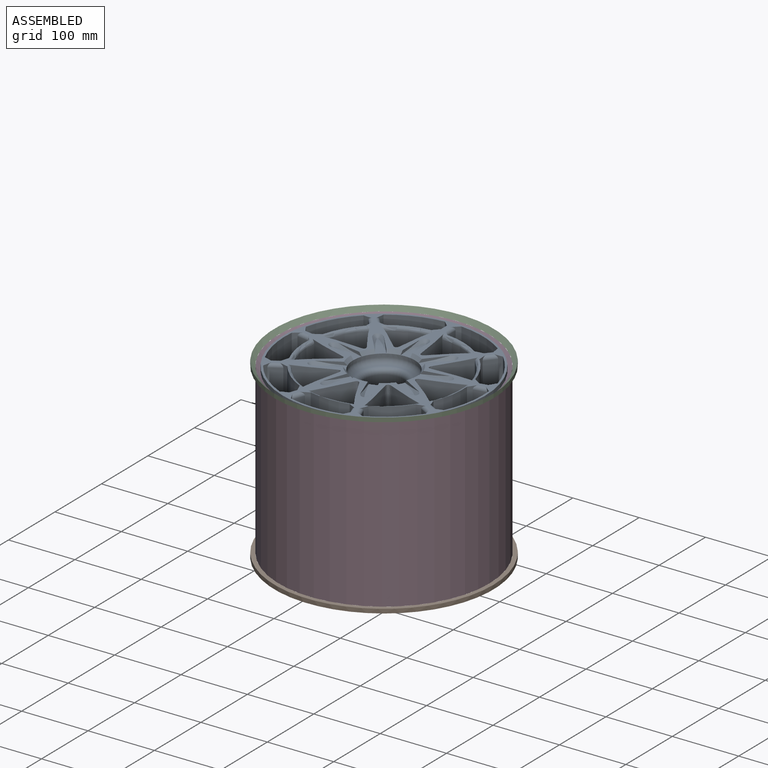
[diagram: assembled view]
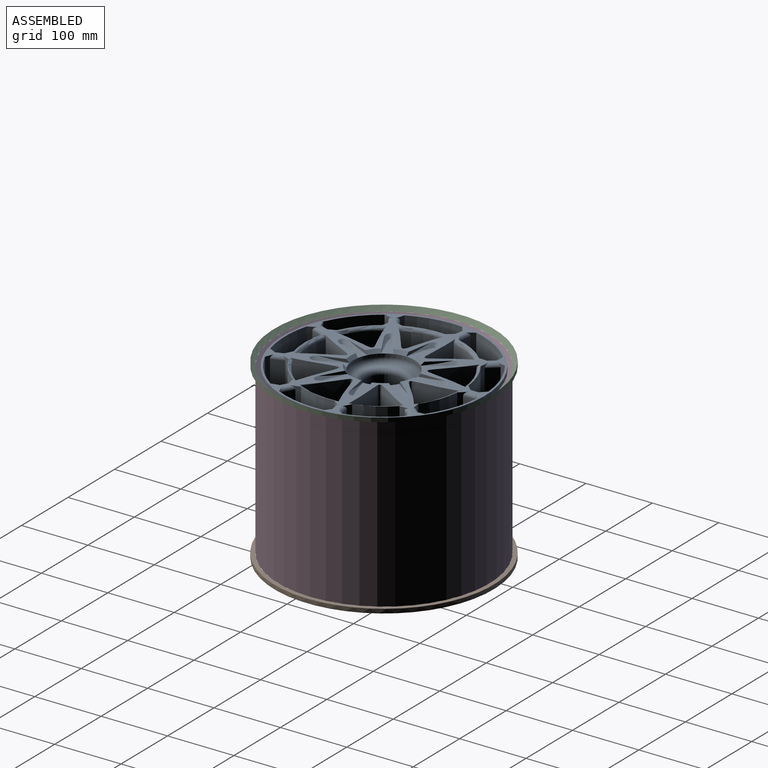
[diagram: assembled view, second angle]
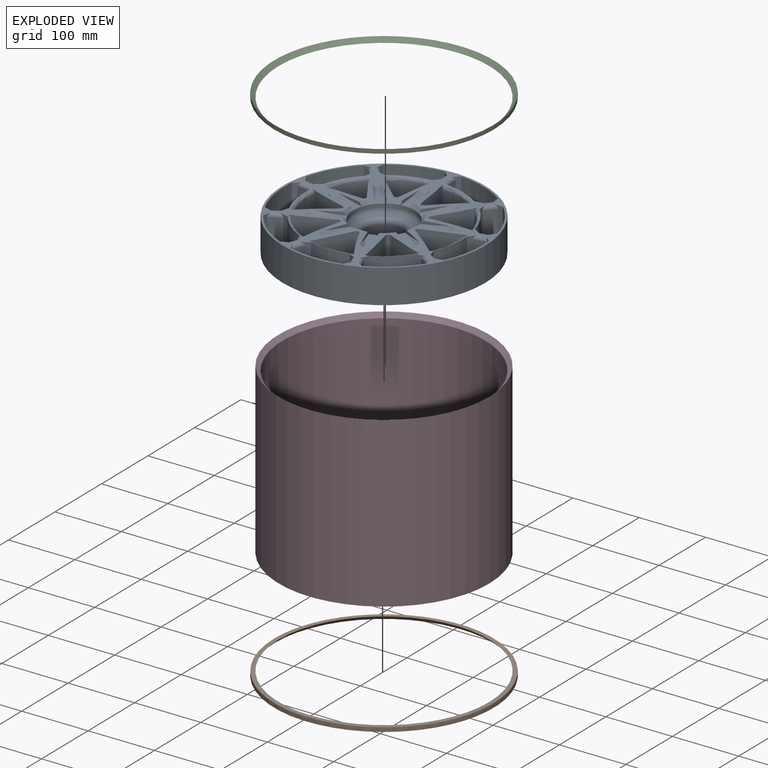
[diagram: exploded view]
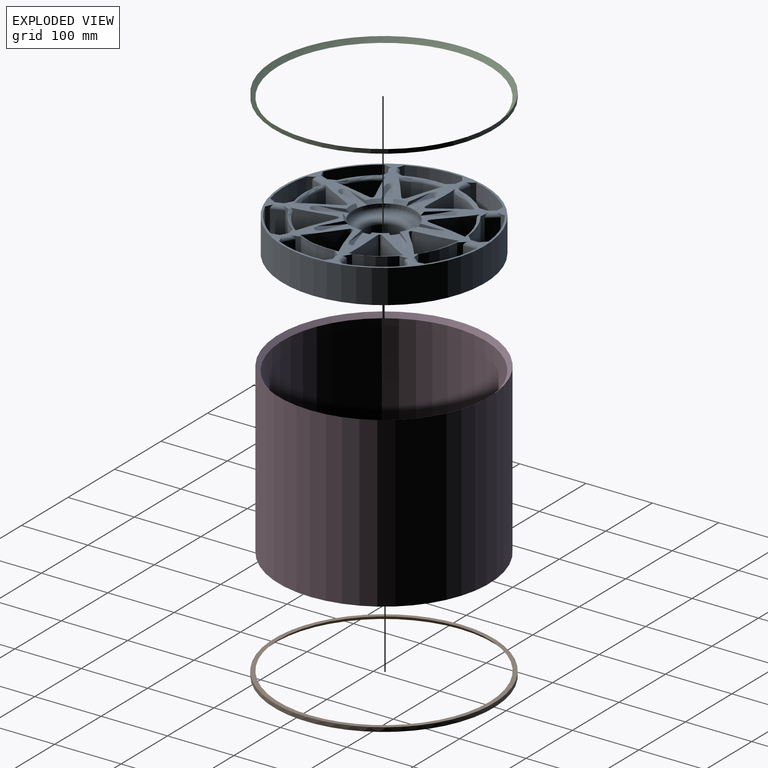
[diagram: exploded view, second angle]
ASSEMBLY  parts=4 mates=3
PART A: 270 faces, bbox 318.7x318.7x66.6 mm
  f0: plane 68.53x32.26mm, normal (0,0,-1), area 1089.1mm2, adj f217,f236,f247,f248,f249,f250
  f1: plane 66.87x49.59mm, normal (0,0,-1), area 1089.1mm2, adj f213,f238,f250,f251,f252,f253
  f2: plane 68.74x40.54mm, normal (0,0,-1), area 1089.1mm2, adj f209,f240,f253,f254,f255,f256
  f3: plane 68.74x40.53mm, normal (0,0,-1), area 1089.1mm2, adj f205,f242,f256,f257,f268,f269
  f4: plane 62.97x57.15mm, normal (0,0,-1), area 1089.1mm2, adj f212,f237,f259,f260,f265,f266
  f5: plane 66.87x49.6mm, normal (0,0,-1), area 1089.1mm2, adj f204,f241,f262,f263,f267,f269
  f6: plane 62.97x57.15mm, normal (0,0,-1), area 1089.1mm2, adj f220,f234,f243,f245,f246,f247
  f7: plane 68.53x32.26mm, normal (0,0,-1), area 1089.1mm2, adj f208,f239,f258,f259,f261,f262
  f8: cylinder r=28.57mm len=57.15mm, axis (0,0,-1), area 4560.4mm2, adj f17,f232
  f9: plane 74x35.9mm, normal (0,0,1), area 423.8mm2, adj f84,f101,f104,f230
  f10: plane 67.81x63.31mm, normal (0,0,1), area 423.8mm2, adj f85,f86,f105,f230
  f11: plane 73.41x28.33mm, normal (0,0,1), area 423.8mm2, adj f87,f88,f103,f230
  f12: plane 67.81x63.31mm, normal (0,0,1), area 423.8mm2, adj f89,f90,f106,f230
  f13: plane 74x35.9mm, normal (0,0,1), area 423.8mm2, adj f91,f92,f107,f230
  f14: plane 71.15x57.78mm, normal (0,0,1), area 423.8mm2, adj f93,f94,f109,f230
  f15: plane 73.24x50.01mm, normal (0,0,1), area 423.8mm2, adj f95,f96,f108,f230
  f16: plane 73.24x50.01mm, normal (0,0,1), area 423.8mm2, adj f97,f98,f110,f230
  f17: plane 73.44x72.32mm, normal (0,0,-1), area 1455.9mm2, adj f8,f234,f235,f236,f237,f238,f239,f240
  f18: plane 305.51x305.51mm, normal (0,0,1), area 16416.9mm2, adj f42,f47,f49,f51,f53,f55,f57,f59
  f19: plane 40.64x15.22mm, normal (-0.77,-0.64,0), area 807.2mm2, adj f135,f150,f183,f201
  f20: cylinder r=119.26mm len=50.82mm, axis (0,0,-1), area 2556.9mm2, adj f129,f149,f150,f219
  f21: plane 40.64x19.56mm, normal (0.17,0.98,0), area 807.2mm2, adj f142,f149,f184,f202
  f22: plane 40.64x19.56mm, normal (-0.17,-0.98,0), area 807.2mm2, adj f134,f160,f173,f191
  f23: cylinder r=119.26mm len=57.79mm, axis (0,0,-1), area 2556.9mm2, adj f128,f160,f161,f215
  f24: plane 40.64x17.2mm, normal (-0.5,0.87,0), area 807.2mm2, adj f143,f161,f172,f190
  f25: plane 40.64x17.2mm, normal (0.5,-0.87,0), area 807.2mm2, adj f133,f162,f171,f189
  f26: cylinder r=119.26mm len=44.95mm, axis (0,0,-1), area 2556.9mm2, adj f127,f162,f163,f211
  f27: plane 40.64x18.67mm, normal (-0.94,0.34,0), area 807.2mm2, adj f144,f163,f170,f188
  f28: plane 40.64x18.67mm, normal (0.94,-0.34,0), area 807.2mm2, adj f132,f164,f169,f187
  f29: cylinder r=119.26mm len=58.68mm, axis (0,0,-1), area 2556.9mm2, adj f126,f164,f166,f207
  f30: plane 40.64x18.67mm, normal (-0.94,-0.34,0), area 807.2mm2, adj f145,f166,f167,f185
  f31: plane 40.64x18.67mm, normal (0.94,0.34,0), area 807.2mm2, adj f131,f165,f168,f186
  f32: cylinder r=119.26mm len=44.95mm, axis (0,0,-1), area 2556.9mm2, adj f125,f158,f165,f203
  f33: plane 40.64x17.2mm, normal (-0.5,-0.87,0), area 807.2mm2, adj f146,f158,f175,f193
  f34: plane 40.64x17.2mm, normal (0.5,0.87,0), area 807.2mm2, adj f138,f159,f174,f192
  f35: cylinder r=119.26mm len=57.79mm, axis (0,0,-1), area 2556.9mm2, adj f124,f157,f159,f206
  f36: plane 40.64x19.56mm, normal (0.17,-0.98,0), area 807.2mm2, adj f147,f157,f176,f194
  f37: plane 40.64x19.56mm, normal (-0.17,0.98,0), area 807.2mm2, adj f139,f156,f177,f195
  f38: cylinder r=119.26mm len=50.82mm, axis (0,0,-1), area 2556.9mm2, adj f122,f154,f156,f210
  f39: plane 40.64x15.22mm, normal (0.77,-0.64,0), area 807.2mm2, adj f148,f154,f179,f197
  f40: cylinder r=119.26mm len=55.14mm, axis (0,0,-1), area 2556.9mm2, adj f123,f153,f155,f214
  f41: plane 40.64x19.86mm, normal (1,0,0), area 807.2mm2, adj f140,f153,f180,f198
  f42: cylinder r=149.22mm len=73.76mm, axis (0,0,-1), area 4035.1mm2, adj f18,f83,f137,f140
  f43: plane 40.64x19.86mm, normal (-1,0,0), area 807.2mm2, adj f136,f152,f181,f199
  f44: cylinder r=119.26mm len=55.14mm, axis (0,0,-1), area 2556.9mm2, adj f130,f151,f152,f218
  f45: plane 40.64x15.22mm, normal (0.77,0.64,0), area 807.2mm2, adj f141,f151,f182,f200
  f46: cylinder r=114.23mm len=54.71mm, axis (0,0,-1), area 2113.5mm2, adj f47,f73,f122,f210
  f47: extruded ~61.86x38.1mm, area 1895.6mm2, adj f18,f46,f122,f208,f221,f258
  f48: cylinder r=114.23mm len=59.36mm, axis (0,0,-1), area 2113.5mm2, adj f49,f74,f123,f214
  f49: extruded ~46.64x40.65mm, area 1895.6mm2, adj f18,f48,f123,f212,f228,f266
  f50: cylinder r=114.23mm len=62.21mm, axis (0,0,-1), area 2113.5mm2, adj f51,f75,f124,f206
  f51: extruded ~48.13x38.87mm, area 1895.6mm2, adj f18,f50,f124,f204,f222,f263
  f52: cylinder r=114.23mm len=48.39mm, axis (0,0,-1), area 2113.5mm2, adj f53,f76,f125,f203
  f53: extruded ~60.71x38.1mm, area 1895.6mm2, adj f18,f52,f125,f205,f223,f268
  f54: cylinder r=114.23mm len=63.17mm, axis (0,0,-1), area 2113.5mm2, adj f55,f77,f126,f207
  f55: extruded ~54.15x38.1mm, area 1895.6mm2, adj f18,f54,f126,f209,f224,f255
  f56: cylinder r=114.23mm len=48.39mm, axis (0,0,-1), area 2113.5mm2, adj f57,f78,f127,f211
  f57: extruded ~57.73x38.1mm, area 1895.6mm2, adj f18,f56,f127,f213,f225,f252
  f58: cylinder r=114.23mm len=62.21mm, axis (0,0,-1), area 2113.5mm2, adj f59,f79,f128,f215
  f59: extruded ~58.52x38.1mm, area 1895.6mm2, adj f18,f58,f128,f217,f226,f249
  f60: cylinder r=114.23mm len=54.71mm, axis (0,0,-1), area 2113.5mm2, adj f61,f80,f129,f219
  f61: extruded ~52.99x38.1mm, area 1895.6mm2, adj f18,f60,f129,f220,f227,f246
  f62: cylinder r=114.23mm len=59.36mm, axis (0,0,-1), area 2113.5mm2, adj f63,f81,f130,f218
  f63: extruded ~61.12x38.1mm, area 1895.6mm2, adj f18,f62,f130,f216,f229,f244
  f64: cylinder r=149.22mm len=77.3mm, axis (0,0,-1), area 4035.1mm2, adj f18,f83,f134,f143
  f65: cylinder r=149.22mm len=60.13mm, axis (0,0,-1), area 4035.1mm2, adj f18,f83,f133,f144
  f66: cylinder r=149.22mm len=78.5mm, axis (0,0,-1), area 4035.1mm2, adj f18,f83,f132,f145
  f67: cylinder r=149.22mm len=60.13mm, axis (0,0,-1), area 4035.1mm2, adj f18,f83,f131,f146
  f68: cylinder r=149.22mm len=77.3mm, axis (0,0,-1), area 4035.1mm2, adj f18,f83,f138,f147
  f69: cylinder r=149.22mm len=67.98mm, axis (0,0,-1), area 4035.1mm2, adj f18,f83,f139,f148
  f70: plane 40.64x15.22mm, normal (-0.77,0.64,0), area 807.2mm2, adj f137,f155,f178,f196
  f71: cylinder r=152.4mm len=304.8mm, axis (0,0,-1), area 48643.9mm2, adj f18,f83
  f72: cylinder r=149.22mm len=73.76mm, axis (0,0,-1), area 4035.1mm2, adj f18,f83,f136,f141
  f73: extruded ~52.99x38.1mm, area 1895.8mm2, adj f18,f46,f122,f212,f221,f260
  f74: extruded ~61.12x38.1mm, area 1895.8mm2, adj f18,f48,f123,f216,f228,f264
  f75: extruded ~58.52x38.1mm, area 1895.8mm2, adj f18,f50,f124,f208,f222,f261
  f76: extruded ~57.73x38.1mm, area 1895.8mm2, adj f18,f52,f125,f204,f223,f267
  f77: extruded ~54.15x38.1mm, area 1895.8mm2, adj f18,f54,f126,f205,f224,f257
  f78: extruded ~60.71x38.1mm, area 1895.8mm2, adj f18,f56,f127,f209,f225,f254
  f79: extruded ~48.13x38.87mm, area 1895.8mm2, adj f18,f58,f128,f213,f226,f251
  f80: extruded ~61.86x38.1mm, area 1895.8mm2, adj f18,f60,f129,f217,f227,f248
  f81: extruded ~46.64x40.65mm, area 1895.8mm2, adj f18,f62,f130,f220,f229,f243
  f82: cylinder r=149.22mm len=67.98mm, axis (0,0,-1), area 4035.1mm2, adj f18,f83,f135,f142
  f83: plane 304.8x304.8mm, normal (0,0,-1), area 4847.6mm2, adj f42,f64,f65,f66,f67,f68,f69,f71
  f84: plane 43.98x10.91mm, normal (0.17,-0.98,0), area 114.2mm2, adj f9,f18,f104,f121
  f85: plane 35.06x30.03mm, normal (-0.77,0.64,0), area 114.2mm2, adj f10,f18,f105,f121
  f86: plane 35.06x30.03mm, normal (0.77,-0.64,0), area 114.2mm2, adj f10,f18,f105,f113
  f87: plane 44.59x8.91mm, normal (-1,0,0), area 113.9mm2, adj f11,f18,f103,f113
  f88: plane 44.6x8.91mm, normal (1,0,0), area 113.9mm2, adj f11,f18,f103,f114
  f89: plane 35.06x30.03mm, normal (-0.77,-0.64,0), area 114.2mm2, adj f12,f18,f106,f114
  f90: plane 35.06x30.03mm, normal (0.77,0.64,0), area 114.2mm2, adj f12,f18,f106,f115
  f91: plane 43.97x10.91mm, normal (-0.17,-0.98,0), area 114.2mm2, adj f13,f18,f107,f115
  f92: plane 43.98x10.91mm, normal (0.17,0.98,0), area 114.2mm2, adj f13,f18,f107,f116
  f93: plane 39.13x24.21mm, normal (0.5,-0.87,0), area 114.2mm2, adj f14,f18,f109,f116
  f94: plane 39.13x24.21mm, normal (-0.5,0.87,0), area 114.2mm2, adj f14,f18,f109,f117
  f95: plane 42.14x17.77mm, normal (0.94,-0.34,0), area 114.2mm2, adj f15,f18,f108,f117
  f96: plane 42.14x17.77mm, normal (-0.94,0.34,0), area 114.2mm2, adj f15,f18,f108,f118
  f97: plane 42.14x17.77mm, normal (0.94,0.34,0), area 114.2mm2, adj f16,f18,f110,f118
  f98: plane 42.14x17.77mm, normal (-0.94,-0.34,0), area 114.2mm2, adj f16,f18,f110,f119
  f99: plane 39.13x24.21mm, normal (0.5,0.87,0), area 114.2mm2, adj f18,f102,f111,f119
  f100: plane 39.13x24.21mm, normal (-0.5,-0.87,0), area 114.2mm2, adj f18,f102,f111,f120
  f101: plane 43.97x10.91mm, normal (-0.17,0.98,0), area 114.2mm2, adj f9,f18,f104,f120
  f102: plane 71.15x57.78mm, normal (0,0,1), area 423.8mm2, adj f99,f100,f111,f230
  f103: bspline ~52.18x25.42mm, area 395.1mm2, adj f11,f18,f87,f88
  f104: bspline ~53.35x27.42mm, area 395.1mm2, adj f9,f18,f84,f101
  f105: bspline ~49.22x45.17mm, area 395.1mm2, adj f10,f18,f85,f86
  f106: bspline ~44.93x41.49mm, area 395.1mm2, adj f12,f18,f89,f90
  f107: bspline ~53.32x27.43mm, area 395.1mm2, adj f13,f18,f91,f92
  f108: bspline ~53.38x33.81mm, area 395.1mm2, adj f15,f18,f95,f96
  f109: bspline ~47.32x36.96mm, area 395.1mm2, adj f14,f18,f93,f94
  f110: bspline ~53.39x33.79mm, area 395.1mm2, adj f16,f18,f97,f98
  f111: bspline ~51.95x39.91mm, area 395.1mm2, adj f18,f99,f100,f102
  f112: plane 66.23x32.76mm, normal (0,0,-1), area 1089.1mm2, adj f216,f235,f244,f245,f264,f265
  f113: cone r=44.45mm half-angle=39.8deg, axis (0,0,1), area 128.9mm2, adj f18,f86,f87,f230
  f114: cone r=44.45mm half-angle=39.8deg, axis (0,0,1), area 128.9mm2, adj f18,f88,f89,f230
  f115: cone r=44.45mm half-angle=39.8deg, axis (0,0,1), area 128.9mm2, adj f18,f90,f91,f230
  f116: cone r=44.45mm half-angle=39.8deg, axis (0,0,1), area 128.9mm2, adj f18,f92,f93,f230
  f117: cone r=44.45mm half-angle=39.8deg, axis (0,0,1), area 128.9mm2, adj f18,f94,f95,f230
  f118: cone r=44.45mm half-angle=39.8deg, axis (0,0,1), area 128.9mm2, adj f18,f96,f97,f230
  f119: cone r=44.45mm half-angle=39.8deg, axis (0,0,1), area 128.9mm2, adj f18,f98,f99,f230
  f120: cone r=44.45mm half-angle=39.8deg, axis (0,0,1), area 128.9mm2, adj f18,f100,f101,f230
  f121: cone r=44.45mm half-angle=39.8deg, axis (0,0,1), area 128.9mm2, adj f18,f84,f85,f230
  f122: torus R=119.31mm, axis (0,0,1), area 524.9mm2, adj f18,f38,f46,f47,f73,f154,f156
  f123: torus R=119.31mm, axis (0,0,1), area 524.9mm2, adj f18,f40,f48,f49,f74,f153,f155
  f124: torus R=119.31mm, axis (0,0,1), area 524.9mm2, adj f18,f35,f50,f51,f75,f157,f159
  f125: torus R=119.31mm, axis (0,0,1), area 524.9mm2, adj f18,f32,f52,f53,f76,f158,f165
  f126: torus R=119.31mm, axis (0,0,1), area 524.9mm2, adj f18,f29,f54,f55,f77,f164,f166
  f127: torus R=119.31mm, axis (0,0,1), area 524.9mm2, adj f18,f26,f56,f57,f78,f162,f163
  f128: torus R=119.31mm, axis (0,0,1), area 524.9mm2, adj f18,f23,f58,f59,f79,f160,f161
  f129: torus R=119.31mm, axis (0,0,1), area 524.9mm2, adj f18,f20,f60,f61,f80,f149,f150
  f130: torus R=119.31mm, axis (0,0,1), area 524.9mm2, adj f18,f44,f62,f63,f81,f151,f152
  f131: plane 52.77x14.92mm, normal (0.38,0.92,0), area 377.1mm2, adj f18,f31,f67,f83,f168,f186
  f132: plane 52.77x14.43mm, normal (0.89,0.46,0), area 377.1mm2, adj f18,f28,f66,f83,f169,f187
  f133: plane 52.77x15.66mm, normal (0.98,-0.22,0), area 377.1mm2, adj f18,f25,f65,f83,f171,f189
  f134: plane 52.77x13.12mm, normal (0.61,-0.79,0), area 377.1mm2, adj f18,f22,f64,f83,f173,f191
  f135: plane 52.77x15.98mm, normal (-0.05,-1,0), area 377.1mm2, adj f18,f19,f82,f83,f183,f201
  f136: plane 52.77x12.29mm, normal (-0.68,-0.74,0), area 377.1mm2, adj f18,f43,f72,f83,f181,f199
  f137: plane 52.77x15.88mm, normal (-0.99,-0.13,0), area 377.1mm2, adj f18,f42,f70,f83,f178,f196
  f138: plane 52.77x15.36mm, normal (-0.3,0.95,0), area 377.1mm2, adj f18,f34,f68,f83,f174,f192
  f139: plane 52.77x13.78mm, normal (-0.84,0.54,0), area 377.1mm2, adj f18,f37,f69,f83,f177,f195
  f140: plane 52.77x12.29mm, normal (0.68,-0.74,0), area 377.1mm2, adj f18,f41,f42,f83,f180,f198
  f141: plane 52.77x15.88mm, normal (0.99,-0.13,0), area 377.1mm2, adj f18,f45,f72,f83,f182,f200
  f142: plane 52.77x13.78mm, normal (0.84,0.54,0), area 377.1mm2, adj f18,f21,f82,f83,f184,f202
  f143: plane 52.77x15.36mm, normal (0.3,0.95,0), area 377.1mm2, adj f18,f24,f64,f83,f172,f190
  f144: plane 52.77x14.92mm, normal (-0.38,0.92,0), area 377.1mm2, adj f18,f27,f65,f83,f170,f188
  f145: plane 52.77x14.43mm, normal (-0.89,0.46,0), area 377.1mm2, adj f18,f30,f66,f83,f167,f185
  f146: plane 52.77x15.66mm, normal (-0.98,-0.22,0), area 377.1mm2, adj f18,f33,f67,f83,f175,f193
  f147: plane 52.77x13.12mm, normal (-0.61,-0.79,0), area 377.1mm2, adj f18,f36,f68,f83,f176,f194
  f148: plane 52.77x15.98mm, normal (0.05,-1,0), area 377.1mm2, adj f18,f39,f69,f83,f179,f197
  f149: plane 53.16x14.9mm, normal (-0.53,0.85,0), area 341.7mm2, adj f18,f20,f21,f83,f129,f184,f202,f217
  f150: plane 53.16x17.16mm, normal (-1,0.04,0), area 341.7mm2, adj f18,f19,f20,f83,f129,f183,f201,f219
  f151: plane 53.16x17.03mm, normal (0.14,0.99,0), area 341.7mm2, adj f18,f44,f45,f83,f130,f182,f200,f218
  f152: plane 53.16x13.35mm, normal (-0.74,0.67,0), area 341.7mm2, adj f18,f43,f44,f83,f130,f181,f199,f216
  f153: plane 53.16x13.35mm, normal (0.74,0.67,0), area 341.7mm2, adj f18,f40,f41,f83,f123,f180,f198,f214
  f154: plane 53.16x17.16mm, normal (1,0.04,0), area 341.7mm2, adj f18,f38,f39,f83,f122,f179,f197,f210
  f155: plane 53.16x17.03mm, normal (-0.14,0.99,0), area 341.7mm2, adj f18,f40,f70,f83,f123,f178,f196,f212
  f156: plane 53.16x14.9mm, normal (0.53,0.85,0), area 341.7mm2, adj f18,f37,f38,f83,f122,f177,f195,f208
  f157: plane 53.16x14.05mm, normal (0.79,-0.61,0), area 341.7mm2, adj f18,f35,f36,f83,f124,f176,f194,f206
  f158: plane 53.16x16.84mm, normal (0.21,-0.98,0), area 341.7mm2, adj f18,f32,f33,f83,f125,f175,f193,f203
  f159: plane 53.16x16.46mm, normal (0.95,0.31,0), area 341.7mm2, adj f18,f34,f35,f83,f124,f174,f192,f204
  f160: plane 53.16x14.05mm, normal (-0.79,-0.61,0), area 341.7mm2, adj f18,f22,f23,f83,f128,f173,f191,f215
  f161: plane 53.16x16.46mm, normal (-0.95,0.31,0), area 341.7mm2, adj f18,f23,f24,f83,f128,f172,f190,f213
  f162: plane 53.16x16.84mm, normal (-0.21,-0.98,0), area 341.7mm2, adj f18,f25,f26,f83,f127,f171,f189,f211
  f163: plane 53.16x16.08mm, normal (-0.93,-0.38,0), area 341.7mm2, adj f18,f26,f27,f83,f127,f170,f188,f209
  f164: plane 53.16x15.45mm, normal (0.47,-0.88,0), area 341.7mm2, adj f18,f28,f29,f83,f126,f169,f187,f207
  f165: plane 53.16x16.08mm, normal (0.93,-0.38,0), area 341.7mm2, adj f18,f31,f32,f83,f125,f168,f186,f203
  f166: plane 53.16x15.45mm, normal (-0.47,-0.88,0), area 341.7mm2, adj f18,f29,f30,f83,f126,f167,f185,f205
  f167: cylinder r=5.08mm len=20.4mm, axis (-0.34,0.94,0), area 117.4mm2, adj f18,f30,f145,f166
  f168: cylinder r=5.08mm len=20.4mm, axis (0.34,-0.94,0), area 117.4mm2, adj f18,f31,f131,f165
  f169: cylinder r=5.08mm len=20.4mm, axis (-0.34,-0.94,0), area 117.4mm2, adj f18,f28,f132,f164
  f170: cylinder r=5.08mm len=20.4mm, axis (0.34,0.94,0), area 117.4mm2, adj f18,f27,f144,f163
  f171: cylinder r=5.08mm len=19.74mm, axis (-0.87,-0.5,0), area 117.4mm2, adj f18,f25,f133,f162
  f172: cylinder r=5.08mm len=19.74mm, axis (0.87,0.5,0), area 117.4mm2, adj f18,f24,f143,f161
  f173: cylinder r=5.08mm len=20.44mm, axis (-0.98,0.17,0), area 117.4mm2, adj f18,f22,f134,f160
  f174: cylinder r=5.08mm len=19.74mm, axis (0.87,-0.5,0), area 117.4mm2, adj f18,f34,f138,f159
  f175: cylinder r=5.08mm len=19.74mm, axis (-0.87,0.5,0), area 117.4mm2, adj f18,f33,f146,f158
  f176: cylinder r=5.08mm len=20.44mm, axis (-0.98,-0.17,0), area 117.4mm2, adj f18,f36,f147,f157
  f177: cylinder r=5.08mm len=20.44mm, axis (0.98,0.17,0), area 117.4mm2, adj f18,f37,f139,f156
  f178: cylinder r=5.08mm len=18.48mm, axis (0.64,0.77,0), area 117.4mm2, adj f18,f70,f137,f155
  f179: cylinder r=5.08mm len=18.48mm, axis (-0.64,-0.77,0), area 117.4mm2, adj f18,f39,f148,f154
  f180: cylinder r=5.08mm len=19.86mm, axis (0,-1,0), area 117.4mm2, adj f18,f41,f140,f153
  f181: cylinder r=5.08mm len=19.86mm, axis (0,1,0), area 117.4mm2, adj f18,f43,f136,f152
  f182: cylinder r=5.08mm len=18.48mm, axis (0.64,-0.77,0), area 117.4mm2, adj f18,f45,f141,f151
  f183: cylinder r=5.08mm len=18.48mm, axis (-0.64,0.77,0), area 117.4mm2, adj f18,f19,f135,f150
  f184: cylinder r=5.08mm len=20.44mm, axis (0.98,-0.17,0), area 117.4mm2, adj f18,f21,f142,f149
  f185: cylinder r=5.08mm len=20.4mm, axis (0.34,-0.94,0), area 117.4mm2, adj f30,f83,f145,f166
  f186: cylinder r=5.08mm len=20.4mm, axis (-0.34,0.94,0), area 117.4mm2, adj f31,f83,f131,f165
  f187: cylinder r=5.08mm len=20.4mm, axis (0.34,0.94,0), area 117.4mm2, adj f28,f83,f132,f164
  f188: cylinder r=5.08mm len=20.4mm, axis (-0.34,-0.94,0), area 117.4mm2, adj f27,f83,f144,f163
  f189: cylinder r=5.08mm len=19.74mm, axis (0.87,0.5,0), area 117.4mm2, adj f25,f83,f133,f162
  f190: cylinder r=5.08mm len=19.74mm, axis (-0.87,-0.5,0), area 117.4mm2, adj f24,f83,f143,f161
  f191: cylinder r=5.08mm len=20.44mm, axis (0.98,-0.17,0), area 117.4mm2, adj f22,f83,f134,f160
  f192: cylinder r=5.08mm len=19.74mm, axis (-0.87,0.5,0), area 117.4mm2, adj f34,f83,f138,f159
  f193: cylinder r=5.08mm len=19.74mm, axis (0.87,-0.5,0), area 117.4mm2, adj f33,f83,f146,f158
  f194: cylinder r=5.08mm len=20.44mm, axis (0.98,0.17,0), area 117.4mm2, adj f36,f83,f147,f157
  f195: cylinder r=5.08mm len=20.44mm, axis (-0.98,-0.17,0), area 117.4mm2, adj f37,f83,f139,f156
  f196: cylinder r=5.08mm len=18.48mm, axis (-0.64,-0.77,0), area 117.4mm2, adj f70,f83,f137,f155
  f197: cylinder r=5.08mm len=18.48mm, axis (0.64,0.77,0), area 117.4mm2, adj f39,f83,f148,f154
  f198: cylinder r=5.08mm len=19.86mm, axis (0,1,0), area 117.4mm2, adj f41,f83,f140,f153
  f199: cylinder r=5.08mm len=19.86mm, axis (0,-1,0), area 117.4mm2, adj f43,f83,f136,f152
  f200: cylinder r=5.08mm len=18.48mm, axis (-0.64,0.77,0), area 117.4mm2, adj f45,f83,f141,f151
  f201: cylinder r=5.08mm len=18.48mm, axis (0.64,-0.77,0), area 117.4mm2, adj f19,f83,f135,f150
  f202: cylinder r=5.08mm len=20.44mm, axis (-0.98,0.17,0), area 117.4mm2, adj f21,f83,f142,f149
  f203: cone r=126.93mm half-angle=45deg, axis (0,0,-1), area 488.2mm2, adj f32,f52,f158,f165,f204,f205
  f204: plane 23.62x23.2mm, normal (-0.61,0.35,-0.71), area 287.1mm2, adj f5,f51,f76,f83,f158,f159,f203,f206
  f205: plane 22.76x22.25mm, normal (-0.24,0.66,-0.71), area 287.1mm2, adj f3,f53,f77,f83,f165,f166,f203,f207
  f206: cone r=126.93mm half-angle=45deg, axis (0,0,-1), area 488.2mm2, adj f35,f50,f157,f159,f204,f208
  f207: cone r=126.93mm half-angle=45deg, axis (0,0,-1), area 488.2mm2, adj f29,f54,f164,f166,f205,f209
  f208: plane 21.26x20.67mm, normal (-0.7,-0.12,-0.71), area 287.1mm2, adj f7,f47,f75,f83,f156,f157,f206,f210
  f209: plane 22.76x22.25mm, normal (0.24,0.66,-0.71), area 287.1mm2, adj f2,f55,f78,f83,f163,f164,f207,f211
  f210: cone r=126.93mm half-angle=45deg, axis (0,0,-1), area 488.2mm2, adj f38,f46,f154,f156,f208,f212
  f211: cone r=126.93mm half-angle=45deg, axis (0,0,-1), area 488.2mm2, adj f26,f56,f162,f163,f209,f213
  f212: plane 23.79x23.48mm, normal (-0.45,-0.54,-0.71), area 287.1mm2, adj f4,f49,f73,f83,f154,f155,f210,f214
  f213: plane 23.62x23.2mm, normal (0.61,0.35,-0.71), area 287.1mm2, adj f1,f57,f79,f83,f161,f162,f211,f215
  f214: cone r=126.93mm half-angle=45deg, axis (0,0,-1), area 488.2mm2, adj f40,f48,f153,f155,f212,f216
  f215: cone r=126.93mm half-angle=45deg, axis (0,0,-1), area 488.2mm2, adj f23,f58,f160,f161,f213,f217
  f216: plane 19.3x19.16mm, normal (0,-0.71,-0.71), area 287.1mm2, adj f63,f74,f83,f112,f152,f153,f214,f218
  f217: plane 21.26x20.67mm, normal (0.7,-0.12,-0.71), area 287.1mm2, adj f0,f59,f80,f83,f149,f160,f215,f219
  f218: cone r=126.93mm half-angle=45deg, axis (0,0,-1), area 488.2mm2, adj f44,f62,f151,f152,f216,f220
  f219: cone r=126.93mm half-angle=45deg, axis (0,0,-1), area 488.2mm2, adj f20,f60,f149,f150,f217,f220
  f220: plane 23.79x23.48mm, normal (0.45,-0.54,-0.71), area 287.1mm2, adj f6,f61,f81,f83,f150,f151,f218,f219
  f221: bspline ~41.91x8.08mm, area 447.8mm2, adj f18,f47,f73,f259
  f222: bspline ~41.91x8.97mm, area 447.8mm2, adj f18,f51,f75,f262
  f223: bspline ~41.91x7.7mm, area 447.8mm2, adj f18,f53,f76,f269
  f224: bspline ~41.91x9.1mm, area 447.8mm2, adj f18,f55,f77,f256
  f225: bspline ~41.91x7.7mm, area 447.8mm2, adj f18,f57,f78,f253
  f226: bspline ~41.91x8.97mm, area 447.8mm2, adj f18,f59,f79,f250
  f227: bspline ~41.91x8.08mm, area 447.8mm2, adj f18,f61,f80,f247
  f228: bspline ~41.91x8.56mm, area 447.8mm2, adj f18,f49,f74,f265
  f229: bspline ~41.91x8.56mm, area 447.8mm2, adj f18,f63,f81,f245
  f230: cylinder r=46.57mm len=93.13mm, axis (0,0,1), area 1486.3mm2, adj f9,f10,f11,f12,f13,f14,f15,f16
  f231: plane 77.89x77.89mm, normal (0,0,1), area 649.6mm2, adj f232,f233
  f232: torus R=36.2mm, axis (0,0,1), area 2357.3mm2, adj f8,f231
  f233: torus R=38.95mm, axis (0,0,1), area 3293.9mm2, adj f230,f231
  f234: plane 31.29x29.15mm, normal (-0.45,0.54,-0.71), area 541.1mm2, adj f6,f17,f235,f236,f245,f247
  f235: plane 34.8x12.75mm, normal (0,0.71,-0.71), area 541.1mm2, adj f17,f112,f234,f237,f245,f265
  f236: plane 34.27x17.79mm, normal (-0.7,0.12,-0.71), area 541.1mm2, adj f0,f17,f234,f238,f247,f250
  f237: plane 31.29x29.15mm, normal (0.45,0.54,-0.71), area 541.1mm2, adj f4,f17,f235,f239,f259,f265
  f238: plane 32.49x26.12mm, normal (-0.61,-0.35,-0.71), area 541.1mm2, adj f1,f17,f236,f240,f250,f253
  f239: plane 34.27x17.79mm, normal (0.7,0.12,-0.71), area 541.1mm2, adj f7,f17,f237,f241,f259,f262
  f240: plane 32.7x22.29mm, normal (-0.24,-0.66,-0.71), area 541.1mm2, adj f2,f17,f238,f242,f253,f256
  f241: plane 32.49x26.12mm, normal (0.61,-0.35,-0.71), area 541.1mm2, adj f5,f17,f239,f242,f262,f269
  f242: plane 32.7x22.29mm, normal (0.24,-0.66,-0.71), area 541.1mm2, adj f3,f17,f240,f241,f256,f269
  f243: bspline ~58.25x51.48mm, area 434.1mm2, adj f6,f81,f220,f245
  f244: bspline ~64.85x14.55mm, area 434.1mm2, adj f63,f112,f216,f245
  f245: bspline ~20.01x12.07mm, area 140.6mm2, adj f6,f112,f229,f234,f235,f243,f244
  f246: bspline ~64.97x41.72mm, area 434.1mm2, adj f6,f61,f220,f247
  f247: bspline ~19.06x15.85mm, area 140.6mm2, adj f0,f6,f227,f234,f236,f246,f248
  f248: bspline ~73.02x7.1mm, area 434.1mm2, adj f0,f80,f217,f247
  f249: bspline ~70.42x28.57mm, area 434.1mm2, adj f0,f59,f217,f250
  f250: bspline ~21.3x14.14mm, area 140.6mm2, adj f0,f1,f226,f236,f238,f249,f251
  f251: bspline ~59.67x49.77mm, area 434.1mm2, adj f1,f79,f213,f250
  f252: bspline ~69.71x30.7mm, area 434.1mm2, adj f1,f57,f213,f253
  f253: bspline ~18.16x17.11mm, area 140.6mm2, adj f1,f2,f225,f238,f240,f252,f254
  f254: bspline ~72.33x18.74mm, area 434.1mm2, adj f2,f78,f209,f253
  f255: bspline ~66.05x39.77mm, area 434.1mm2, adj f2,f55,f209,f256
  f256: bspline ~21.63x13.14mm, area 140.6mm2, adj f2,f3,f224,f240,f242,f255,f257
  f257: bspline ~66.05x39.77mm, area 434.1mm2, adj f3,f77,f205,f256
  f258: bspline ~73.02x7.1mm, area 434.1mm2, adj f7,f47,f208,f259
  f259: bspline ~19.06x15.85mm, area 140.6mm2, adj f4,f7,f221,f237,f239,f258,f260
  f260: bspline ~64.97x41.72mm, area 434.1mm2, adj f4,f73,f212,f259
  f261: bspline ~70.42x28.57mm, area 434.1mm2, adj f7,f75,f208,f262
  f262: bspline ~21.3x14.14mm, area 140.6mm2, adj f5,f7,f222,f239,f241,f261,f263
  f263: bspline ~59.67x49.77mm, area 434.1mm2, adj f5,f51,f204,f262
  f264: bspline ~72.65x16.5mm, area 434.1mm2, adj f74,f112,f216,f265
  f265: bspline ~20.33x14.94mm, area 140.6mm2, adj f4,f112,f228,f235,f237,f264,f266
  f266: bspline ~58.25x51.48mm, area 434.1mm2, adj f4,f49,f212,f265
  f267: bspline ~69.71x30.7mm, area 434.1mm2, adj f5,f76,f204,f269
  f268: bspline ~72.33x18.74mm, area 434.1mm2, adj f3,f53,f205,f269
  f269: bspline ~18.16x17.1mm, area 140.6mm2, adj f3,f5,f223,f241,f242,f267,f268
PART B: 3 faces, bbox 330.2x330.2x6.4 mm
  f0: cylinder r=165.1mm len=330.2mm, axis (0,0,-1), area 6587.2mm2, adj f1,f2
  f1: plane 330.2x330.2mm, normal (0,0,1), area 6460.5mm2, adj f0,f2
  f2: cone r=171.45mm half-angle=45deg, axis (0,0,-1), area 9136.6mm2, adj f0,f1
PART C: 3 faces, bbox 330.2x330.2x6.4 mm
  f0: cylinder r=165.1mm len=330.2mm, axis (0,0,-1), area 6587.2mm2, adj f1,f2
  f1: plane 330.2x330.2mm, normal (0,0,-1), area 6460.5mm2, adj f0,f2
  f2: cone r=158.75mm half-angle=45deg, axis (0,0,1), area 9136.6mm2, adj f0,f1
PART D: 4 faces, bbox 317.5x317.5x254 mm
  f0: cylinder r=152.4mm len=304.8mm, axis (0,0,-1), area 231058.6mm2, adj f2,f3
  f1: cylinder r=158.75mm len=317.5mm, axis (0,0,-1), area 253353.7mm2, adj f2,f3
  f2: cone r=152.4mm half-angle=45deg, axis (0,0,1), area 8778.3mm2, adj f0,f1
  f3: cone r=158.75mm half-angle=45deg, axis (0,0,-1), area 8778.3mm2, adj f0,f1
PLACE A t=(116.46,-472.4,-8.14)mm
PLACE B t=(116.46,-472.4,-224.04)mm
PLACE C t=(116.46,-472.4,42.66)mm
PLACE D t=(116.46,-472.4,-211.34)mm
MATE fastened B.f2 <-> D.f1  axis (0,0,1) through (116.46,-472.4,-211.34)mm
MATE fastened A.f71 <-> D.f0  axis (0,0,-1) through (116.46,-472.4,17.26)mm
MATE fastened C.f2 <-> D.f1  axis (0,0,-1) through (116.46,-472.4,42.66)mm
